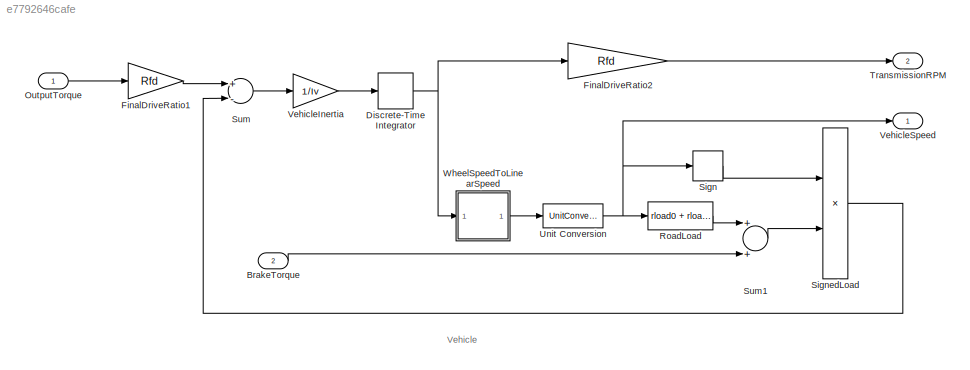
MODEL slx_e7792646cafe
KIND model
CONFIG AbsTol = auto
CONFIG EnableMultiTasking = off
CONFIG FixedStep = 0.04
CONFIG InitFcn = mbd_pnt_consistency_checks(bdroot(gcs));
CONFIG MaxStep = auto
CONFIG MinStep = auto
CONFIG RelTol = 1e-3
CONFIG SampleTimeConstraint = Unconstrained
CONFIG Solver = FixedStepDiscrete
CONFIG SolverName = FixedStepDiscrete
CONFIG StartTime = 0.0
CONFIG StopTime = 10.0
BLOCK [Inport] BrakeTorque
  IconDisplay = Port number
  Port = 2
  Unit = ft*lbf@torque
BLOCK [DiscreteIntegrator] Discrete-Time Integrator
  ICPrevOutput = DiscIntNeverNeededParam
  ICPrevScaledInput = DiscIntNeverNeededParam
  InitialCondition = N20/Rfd
  InitialConditionSetting = Auto
  Ports = [1, 1]
  SampleTime = -1
BLOCK [Gain] FinalDriveRatio1
  Gain = Rfd
BLOCK [Gain] FinalDriveRatio2
  Gain = Rfd
BLOCK [Inport] OutputTorque
  IconDisplay = Port number
  Unit = ft*lbf@torque
BLOCK [Fcn] RoadLoad
  Expr = rload0 + rload2*u^2
BLOCK [Signum] Sign
BLOCK [Product] SignedLoad
  Ports = [2, 1]
  RndMeth = Floor
BLOCK [Sum] Sum
  Inputs = +-
  Ports = [2, 1]
BLOCK [Sum] Sum1
  Ports = [2, 1]
BLOCK [Outport] TransmissionRPM
  IconDisplay = Port number
  Port = 2
  Unit = rpm
BLOCK [UnitConversion] Unit Conversion
BLOCK [Gain] VehicleInertia
  Gain = 1/Iv
BLOCK [Outport] VehicleSpeed
  IconDisplay = Port number
  Unit = mph
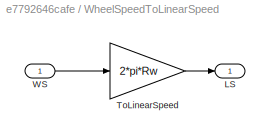
BLOCK [SubSystem] WheelSpeedToLinearSpeed
  Ports = [1, 1]
  RequestExecContextInheritance = off
BLOCK [Outport] WheelSpeedToLinearSpeed/LS
  IconDisplay = Port number
  Unit = ft/min
BLOCK [Gain] WheelSpeedToLinearSpeed/ToLinearSpeed
  Gain = 2*pi*Rw
BLOCK [Inport] WheelSpeedToLinearSpeed/WS
  IconDisplay = Port number
  Unit = rpm
ANNOTATION (root): Vehicle
LINE BrakeTorque:1 -> Sum1:2
NET Discrete-Time Integrator:1 -> FinalDriveRatio2:1, WheelSpeedToLinearSpeed:1
LINE FinalDriveRatio1:1 -> Sum:1
LINE FinalDriveRatio2:1 -> TransmissionRPM:1
LINE OutputTorque:1 -> FinalDriveRatio1:1
LINE RoadLoad:1 -> Sum1:1
LINE Sign:1 -> SignedLoad:1
LINE SignedLoad:1 -> Sum:2
LINE Sum1:1 -> SignedLoad:2
LINE Sum:1 -> VehicleInertia:1
NET Unit Conversion:1 -> RoadLoad:1, Sign:1, VehicleSpeed:1
LINE VehicleInertia:1 -> Discrete-Time Integrator:1
LINE WheelSpeedToLinearSpeed/ToLinearSpeed:1 -> WheelSpeedToLinearSpeed/LS:1
LINE WheelSpeedToLinearSpeed/WS:1 -> WheelSpeedToLinearSpeed/ToLinearSpeed:1
LINE WheelSpeedToLinearSpeed:1 -> Unit Conversion:1
note: NET lines group one-source signal fan-out (src -> all destinations, sorted); 1:1 wires keep LINE
